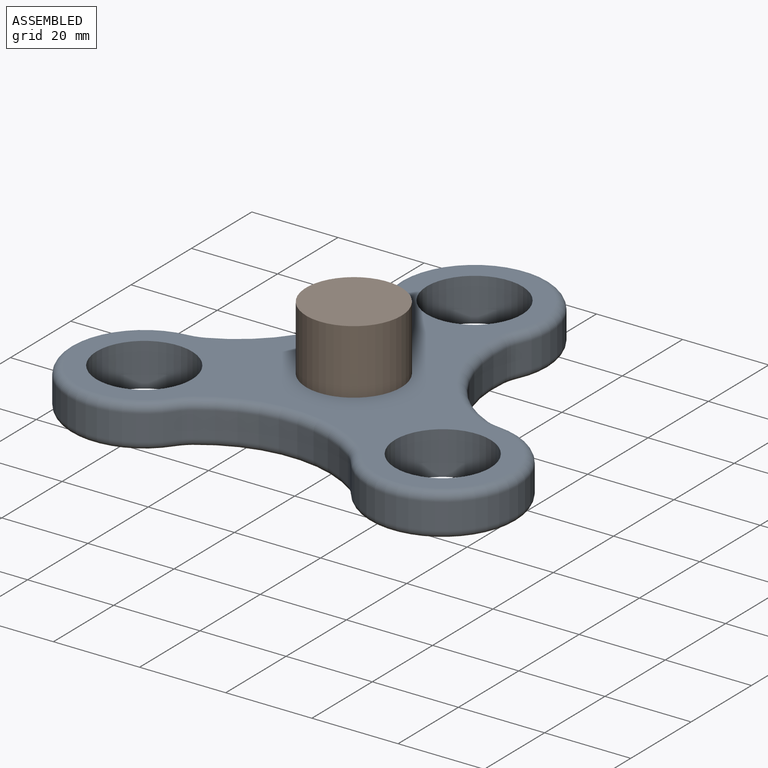
[diagram: assembled view]
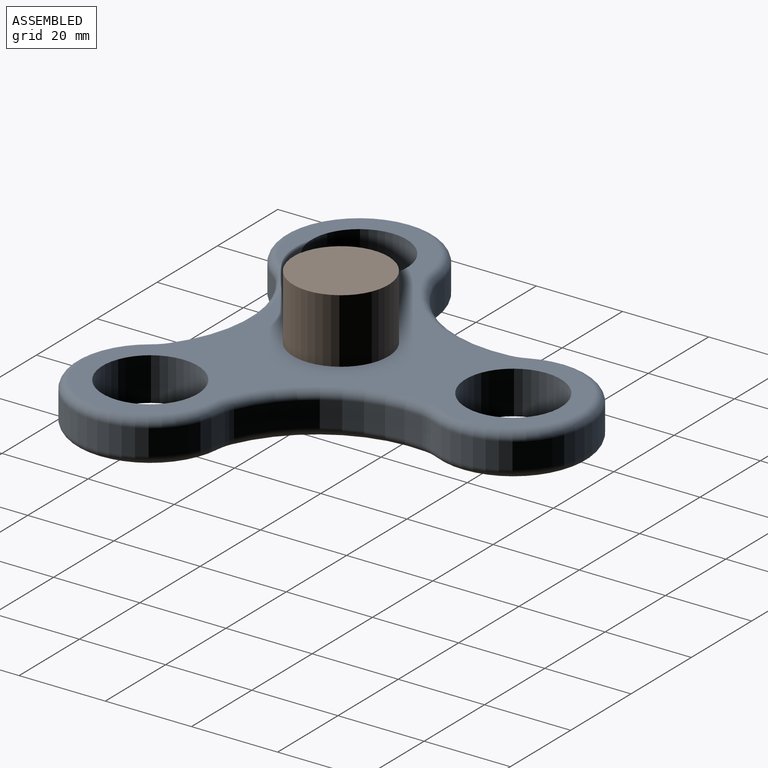
[diagram: assembled view, second angle]
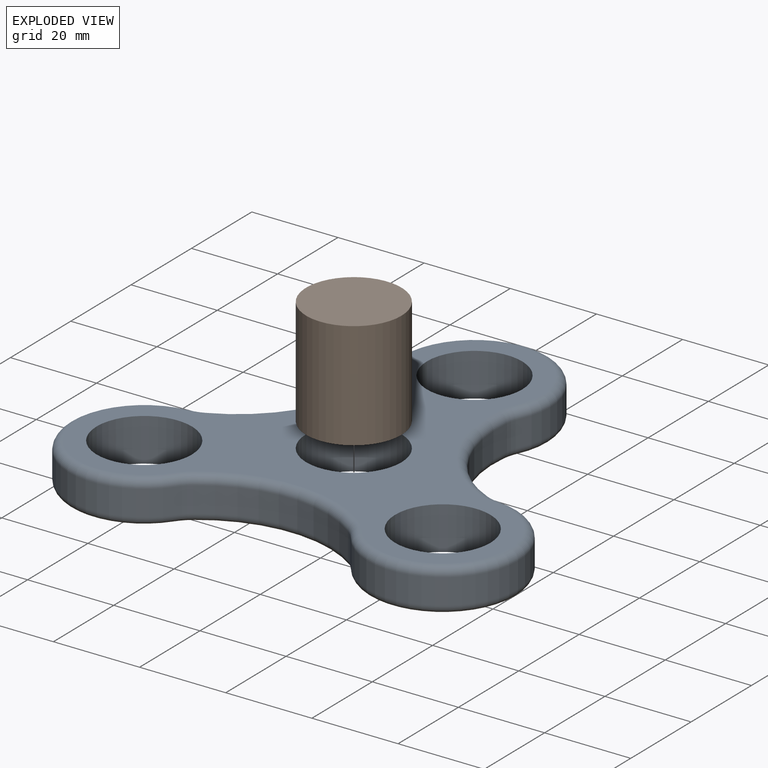
[diagram: exploded view]
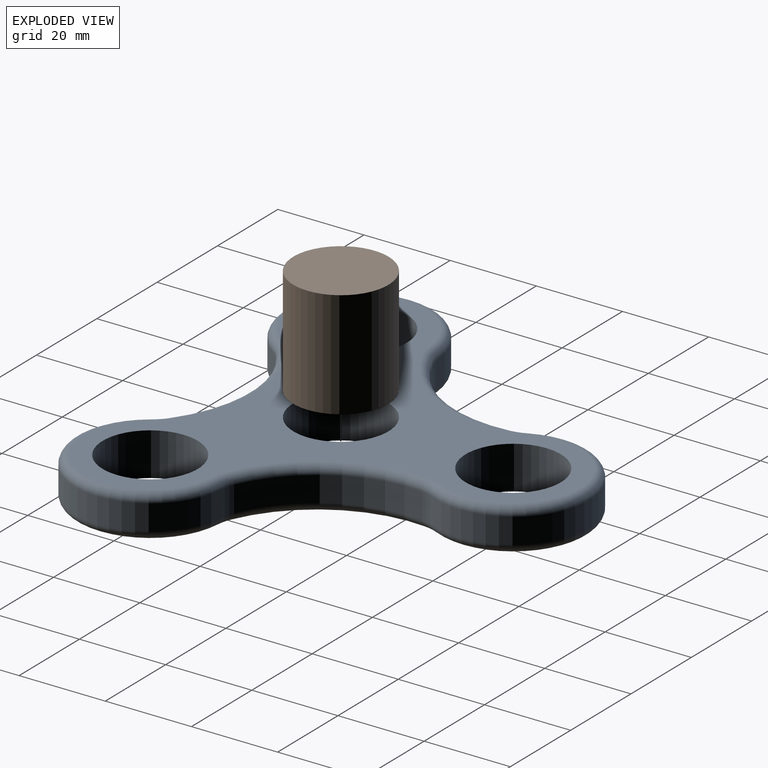
[diagram: exploded view, second angle]
ASSEMBLY  parts=2 mates=2
PART A: 42 faces, bbox 107.2x97.9x10 mm
  f0: cylinder r=17.5mm len=34.94mm, axis (0,0,-1), area 422.1mm2, adj f12,f13,f18,f30
  f1: cylinder r=30.4mm len=35.97mm, axis (0,0,-1), area 231mm2, adj f12,f14,f22,f34
  f2: cylinder r=17.5mm len=34.94mm, axis (0,0,-1), area 422.1mm2, adj f14,f15,f26,f38
  f3: cylinder r=30.4mm len=31.15mm, axis (0,0,-1), area 231mm2, adj f15,f16,f29,f41
  f4: cylinder r=17.5mm len=35mm, axis (0,0,-1), area 422.1mm2, adj f16,f17,f25,f37
  f5: cylinder r=11.05mm len=22.1mm, axis (0,0,-1), area 694.3mm2, adj f10,f11
  f6: cylinder r=11.05mm len=22.1mm, axis (0,0,-1), area 694.3mm2, adj f10,f11
  f7: cylinder r=30.4mm len=31.15mm, axis (0,0,-1), area 231mm2, adj f13,f17,f21,f33
  f8: cylinder r=11.05mm len=22.1mm, axis (0,0,-1), area 694.3mm2, adj f10,f11
  f9: cylinder r=11.05mm len=22.1mm, axis (0,0,-1), area 694.3mm2, adj f10,f11
  f10: plane 100.28x91mm, normal (0,0,1), area 2653.3mm2, adj f5,f6,f8,f9,f18,f19,f20,f21
  f11: plane 100.28x91mm, normal (0,0,-1), area 2653.3mm2, adj f5,f6,f8,f9,f30,f31,f32,f33
  f12: cylinder r=10mm len=6mm, axis (0,0,-1), area 19.8mm2, adj f0,f1,f20,f32
  f13: cylinder r=10mm len=6mm, axis (0,0,-1), area 19.8mm2, adj f0,f7,f19,f31
  f14: cylinder r=10mm len=6mm, axis (0,0,-1), area 19.8mm2, adj f1,f2,f24,f36
  f15: cylinder r=10mm len=6mm, axis (0,0,-1), area 19.8mm2, adj f2,f3,f28,f40
  f16: cylinder r=10mm len=6mm, axis (0,0,-1), area 19.8mm2, adj f3,f4,f27,f39
  f17: cylinder r=10mm len=6mm, axis (0,0,-1), area 19.8mm2, adj f4,f7,f23,f35
  f18: torus R=15.5mm, axis (0,0,1), area 211.8mm2, adj f0,f10,f19,f20
  f19: torus R=12mm, axis (0,0,1), area 11.1mm2, adj f10,f13,f18,f21
  f20: torus R=12mm, axis (0,0,1), area 11.1mm2, adj f10,f12,f18,f22
  f21: torus R=32.4mm, axis (0,0,1), area 123.8mm2, adj f7,f10,f19,f23
  f22: torus R=32.4mm, axis (0,0,1), area 123.8mm2, adj f1,f10,f20,f24
  f23: torus R=12mm, axis (0,0,1), area 11.1mm2, adj f10,f17,f21,f25
  f24: torus R=12mm, axis (0,0,1), area 11.1mm2, adj f10,f14,f22,f26
  f25: torus R=15.5mm, axis (0,0,1), area 211.8mm2, adj f4,f10,f23,f27
  f26: torus R=15.5mm, axis (0,0,1), area 211.8mm2, adj f2,f10,f24,f28
  f27: torus R=12mm, axis (0,0,1), area 11.1mm2, adj f10,f16,f25,f29
  f28: torus R=12mm, axis (0,0,1), area 11.1mm2, adj f10,f15,f26,f29
  f29: torus R=32.4mm, axis (0,0,1), area 123.8mm2, adj f3,f10,f27,f28
  f30: torus R=15.5mm, axis (0,0,1), area 211.8mm2, adj f0,f11,f31,f32
  f31: torus R=12mm, axis (0,0,1), area 11.1mm2, adj f11,f13,f30,f33
  f32: torus R=12mm, axis (0,0,1), area 11.1mm2, adj f11,f12,f30,f34
  f33: torus R=32.4mm, axis (0,0,1), area 123.8mm2, adj f7,f11,f31,f35
  f34: torus R=32.4mm, axis (0,0,1), area 123.8mm2, adj f1,f11,f32,f36
  f35: torus R=12mm, axis (0,0,1), area 11.1mm2, adj f11,f17,f33,f37
  f36: torus R=12mm, axis (0,0,1), area 11.1mm2, adj f11,f14,f34,f38
  f37: torus R=15.5mm, axis (0,0,1), area 211.8mm2, adj f4,f11,f35,f39
  f38: torus R=15.5mm, axis (0,0,1), area 211.8mm2, adj f2,f11,f36,f40
  f39: torus R=12mm, axis (0,0,1), area 11.1mm2, adj f11,f16,f37,f41
  f40: torus R=12mm, axis (0,0,1), area 11.1mm2, adj f11,f15,f38,f41
  f41: torus R=32.4mm, axis (0,0,1), area 123.8mm2, adj f3,f11,f39,f40
PART B: 3 faces, bbox 22.1x22.1x25 mm
  f0: cylinder r=11.05mm len=25mm, axis (0,0,-1), area 1735.7mm2, adj f1,f2
  f1: plane 22.1x22.1mm, normal (0,0,1), area 383.6mm2, adj f0
  f2: plane 22.1x22.1mm, normal (0,0,-1), area 383.6mm2, adj f0
PLACE A t=(-46.41,0.19,-26.96)mm
PLACE B t=(-126.98,-25.44,-26.96)mm
MATE planar B.f0 <-> B.f0  axis (0,0,-1) through (-46.41,0.19,-14.46)mm
MATE fastened B.f0 <-> A.f6  axis (0,0,-1) through (-46.41,0.19,-26.96)mm
